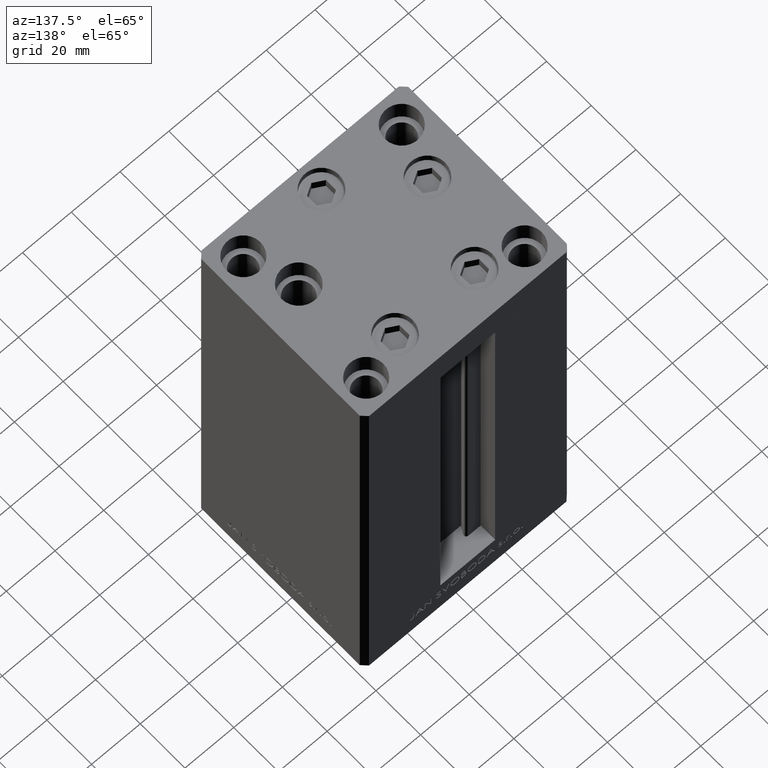
[diagram: clean part render]
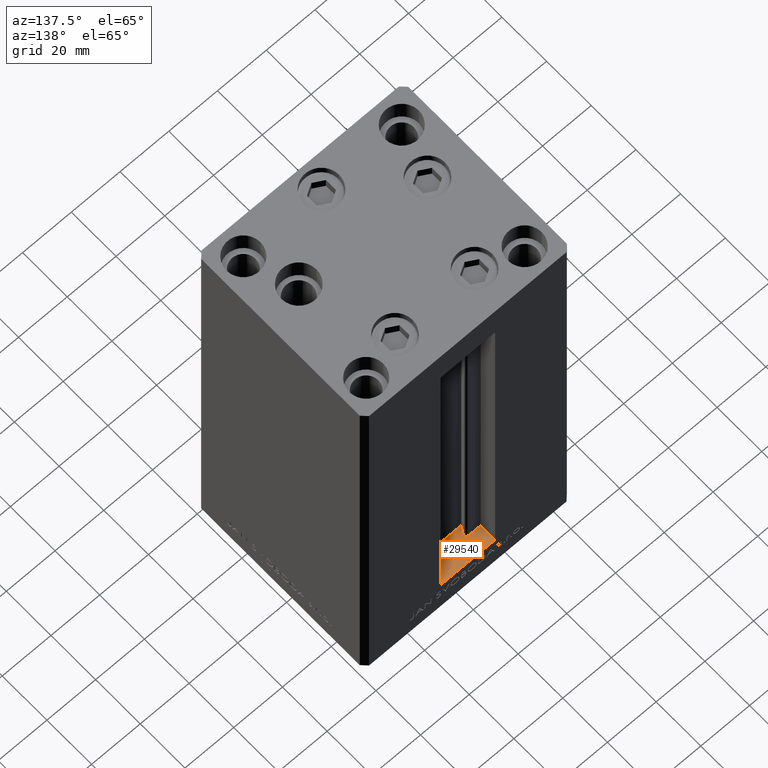
[diagram: same view with one face highlighted and labeled with its STEP entity id]
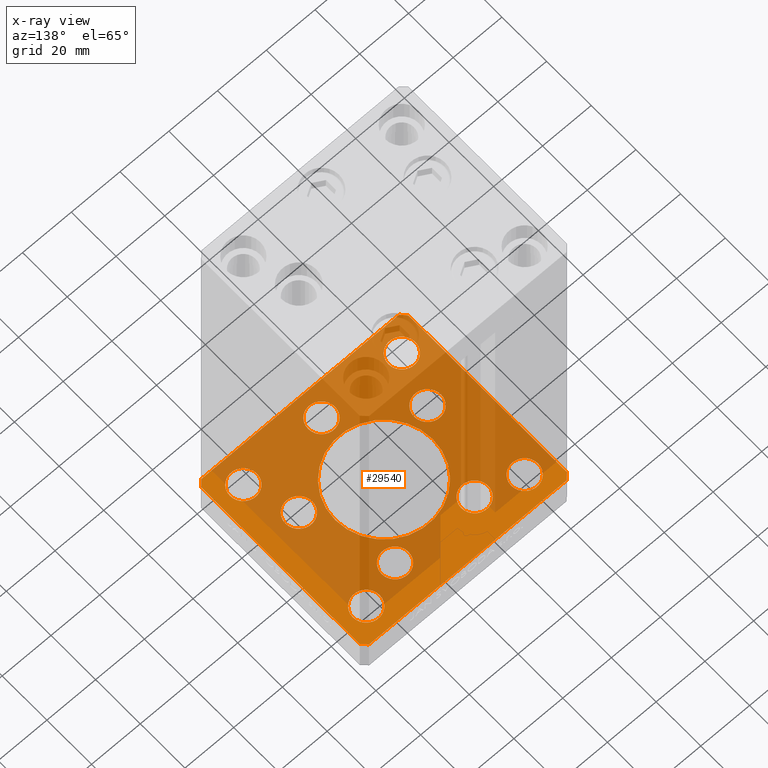
[diagram: x-ray of the same camera — body ghosted, the highlighted face saturated]
A machine part, auxiliary view. The second image highlights one B-rep face of the part: STEP entity #29540.
The next image is the same camera in x-ray: the body ghosted, the highlighted face saturated — about 75% of this face is hidden behind the body in this view.
In plain terms, the highlighted planar face has unit normal (0, 0, -1).
Its self-contained STEP definition (entity closure, byte-faithful):
#97 = EDGE_CURVE ( 'NONE', #33451, #36323, #37943, .T. ) ;
#394 = DIRECTION ( 'NONE',  ( 1.000000000000000000, 0.000000000000000000, 0.000000000000000000 ) ) ;
#706 = CARTESIAN_POINT ( 'NONE',  ( 0.000000000000000000, 0.000000000000000000, -15.00000000000000000 ) ) ;
#1478 = CARTESIAN_POINT ( 'NONE',  ( 5.500000000000000000, -28.00000000000000000, -15.00000000000000000 ) ) ;
#2094 = DIRECTION ( 'NONE',  ( -0.000000000000000000, 0.000000000000000000, 1.000000000000000000 ) ) ;
#2304 = VERTEX_POINT ( 'NONE', #44771 ) ;
#2755 = VECTOR ( 'NONE', #5138, 1000.000000000000000 ) ;
#2820 = AXIS2_PLACEMENT_3D ( 'NONE', #21698, #14400, #17663 ) ;
#3038 = VECTOR ( 'NONE', #42589, 1000.000000000000000 ) ;
#3279 = CARTESIAN_POINT ( 'NONE',  ( 10.82291334290544604, 22.74999999999999289, -15.00000000000000000 ) ) ;
#3298 = ORIENTED_EDGE ( 'NONE', *, *, #8853, .T. ) ;
#3534 = CIRCLE ( 'NONE', #31632, 5.499999999999998224 ) ;
#3771 = EDGE_LOOP ( 'NONE', ( #27660, #39277, #43460, #42204, #13639, #24082, #22173, #16581 ) ) ;
#3836 = EDGE_CURVE ( 'NONE', #13197, #24353, #29240, .T. ) ;
#3910 = ORIENTED_EDGE ( 'NONE', *, *, #20980, .F. ) ;
#4022 = DIRECTION ( 'NONE',  ( -0.7071067811865524577, 0.7071067811865426878, 0.000000000000000000 ) ) ;
#4591 = AXIS2_PLACEMENT_3D ( 'NONE', #706, #18800, #27103 ) ;
#5138 = DIRECTION ( 'NONE',  ( 9.773090005503145261E-17, 1.000000000000000000, 0.000000000000000000 ) ) ;
#5227 = VECTOR ( 'NONE', #9442, 1000.000000000000000 ) ;
#5323 = EDGE_CURVE ( 'NONE', #8970, #33451, #47101, .T. ) ;
#5759 = CARTESIAN_POINT ( 'NONE',  ( 32.50000000000000000, 27.49999999999999645, -15.00000000000000000 ) ) ;
#6634 = VERTEX_POINT ( 'NONE', #28063 ) ;
#6879 = EDGE_CURVE ( 'NONE', #42743, #35894, #30030, .T. ) ;
#6923 = CARTESIAN_POINT ( 'NONE',  ( 16.32291334290544071, 22.74999999999999289, -15.00000000000000000 ) ) ;
#7328 = EDGE_CURVE ( 'NONE', #35066, #7404, #15668, .T. ) ;
#7404 = VERTEX_POINT ( 'NONE', #1478 ) ;
#7599 = CARTESIAN_POINT ( 'NONE',  ( 38.00000000000000000, -27.50000000000000355, -15.00000000000000000 ) ) ;
#7629 = EDGE_LOOP ( 'NONE', ( #45126, #13527 ) ) ;
#7783 = VERTEX_POINT ( 'NONE', #30056 ) ;
#7790 = CIRCLE ( 'NONE', #47912, 5.499999999999998224 ) ;
#8057 = EDGE_LOOP ( 'NONE', ( #46930, #9394 ) ) ;
#8134 = CARTESIAN_POINT ( 'NONE',  ( 42.50000000000000711, -35.49999999999992895, -15.00000000000000000 ) ) ;
#8263 = CARTESIAN_POINT ( 'NONE',  ( -32.50000000000000000, 27.50000000000000711, -15.00000000000000000 ) ) ;
#8265 = ORIENTED_EDGE ( 'NONE', *, *, #38704, .F. ) ;
#8464 = DIRECTION ( 'NONE',  ( 1.000000000000000000, 0.000000000000000000, 0.000000000000000000 ) ) ;
#8599 = VERTEX_POINT ( 'NONE', #23998 ) ;
#8750 = ORIENTED_EDGE ( 'NONE', *, *, #36117, .T. ) ;
#8853 = EDGE_CURVE ( 'NONE', #46281, #48559, #35639, .T. ) ;
#8970 = VERTEX_POINT ( 'NONE', #8134 ) ;
#9276 = CARTESIAN_POINT ( 'NONE',  ( 21.82291334290544071, 22.74999999999999289, -15.00000000000000000 ) ) ;
#9355 = CIRCLE ( 'NONE', #24601, 5.499999999999998224 ) ;
#9394 = ORIENTED_EDGE ( 'NONE', *, *, #6879, .T. ) ;
#9442 = DIRECTION ( 'NONE',  ( -1.000000000000000000, -4.283267841918041508E-16, 0.000000000000000000 ) ) ;
#9562 = EDGE_CURVE ( 'NONE', #2304, #38003, #23664, .T. ) ;
#9834 = EDGE_LOOP ( 'NONE', ( #16561, #12075 ) ) ;
#9967 = AXIS2_PLACEMENT_3D ( 'NONE', #33529, #19180, #45575 ) ;
#10113 = AXIS2_PLACEMENT_3D ( 'NONE', #30721, #14382, #29727 ) ;
#10336 = VERTEX_POINT ( 'NONE', #13379 ) ;
#10509 = FACE_BOUND ( 'NONE', #36011, .T. ) ;
#10657 = DIRECTION ( 'NONE',  ( 0.000000000000000000, -0.000000000000000000, -1.000000000000000000 ) ) ;
#10748 = FACE_BOUND ( 'NONE', #33492, .T. ) ;
#10760 = ORIENTED_EDGE ( 'NONE', *, *, #14897, .F. ) ;
#10789 = AXIS2_PLACEMENT_3D ( 'NONE', #18015, #17018, #36646 ) ;
#10846 = EDGE_CURVE ( 'NONE', #36323, #31033, #16695, .T. ) ;
#11059 = LINE ( 'NONE', #16049, #36247 ) ;
#11292 = EDGE_CURVE ( 'NONE', #8599, #22788, #18090, .T. ) ;
#11373 = CARTESIAN_POINT ( 'NONE',  ( -21.82291334290544071, 22.74999999999999289, -15.00000000000000000 ) ) ;
#11442 = CARTESIAN_POINT ( 'NONE',  ( -27.00000000000000355, 27.50000000000000711, -15.00000000000000000 ) ) ;
#11529 = DIRECTION ( 'NONE',  ( 1.000000000000000000, 0.000000000000000000, 0.000000000000000000 ) ) ;
#11814 = DIRECTION ( 'NONE',  ( -0.000000000000000000, 0.000000000000000000, 1.000000000000000000 ) ) ;
#11925 = LINE ( 'NONE', #27258, #3038 ) ;
#12075 = ORIENTED_EDGE ( 'NONE', *, *, #43352, .F. ) ;
#12256 = CARTESIAN_POINT ( 'NONE',  ( -16.32291334290544071, 22.74999999999999289, -15.00000000000000000 ) ) ;
#12552 = EDGE_CURVE ( 'NONE', #10336, #6634, #26979, .T. ) ;
#12608 = CIRCLE ( 'NONE', #41496, 5.499999999999998224 ) ;
#12710 = CARTESIAN_POINT ( 'NONE',  ( 16.32291334290544071, 22.74999999999999289, -15.00000000000000000 ) ) ;
#12713 = ORIENTED_EDGE ( 'NONE', *, *, #36472, .T. ) ;
#12926 = CARTESIAN_POINT ( 'NONE',  ( 42.50000000000000711, -35.49999999999992895, -15.00000000000000000 ) ) ;
#13150 = AXIS2_PLACEMENT_3D ( 'NONE', #25102, #40415, #44691 ) ;
#13166 = EDGE_CURVE ( 'NONE', #37958, #21289, #9355, .T. ) ;
#13197 = VERTEX_POINT ( 'NONE', #15237 ) ;
#13379 = CARTESIAN_POINT ( 'NONE',  ( -42.50000000000000000, -35.50000000000004263, -15.00000000000000000 ) ) ;
#13446 = DIRECTION ( 'NONE',  ( -0.7071067811865536790, -0.7071067811865414665, 0.000000000000000000 ) ) ;
#13527 = ORIENTED_EDGE ( 'NONE', *, *, #36725, .T. ) ;
#13639 = ORIENTED_EDGE ( 'NONE', *, *, #97, .F. ) ;
#14375 = VECTOR ( 'NONE', #45858, 1000.000000000000114 ) ;
#14382 = DIRECTION ( 'NONE',  ( -0.000000000000000000, 0.000000000000000000, 1.000000000000000000 ) ) ;
#14400 = DIRECTION ( 'NONE',  ( 0.000000000000000000, -0.000000000000000000, -1.000000000000000000 ) ) ;
#14896 = EDGE_CURVE ( 'NONE', #48559, #46281, #7790, .T. ) ;
#14897 = EDGE_CURVE ( 'NONE', #7783, #37366, #26258, .T. ) ;
#15237 = CARTESIAN_POINT ( 'NONE',  ( 27.00000000000000355, 27.49999999999999645, -15.00000000000000000 ) ) ;
#15668 = CIRCLE ( 'NONE', #18060, 5.500000000000000000 ) ;
#16049 = CARTESIAN_POINT ( 'NONE',  ( -40.50000000000000711, -37.50000000000003553, -15.00000000000000000 ) ) ;
#16074 = EDGE_LOOP ( 'NONE', ( #37011, #3298 ) ) ;
#16090 = EDGE_LOOP ( 'NONE', ( #3910, #43768 ) ) ;
#16561 = ORIENTED_EDGE ( 'NONE', *, *, #35865, .F. ) ;
#16581 = ORIENTED_EDGE ( 'NONE', *, *, #29397, .F. ) ;
#16652 = DIRECTION ( 'NONE',  ( -0.000000000000000000, 0.000000000000000000, 1.000000000000000000 ) ) ;
#16687 = DIRECTION ( 'NONE',  ( -0.000000000000000000, 0.000000000000000000, 1.000000000000000000 ) ) ;
#16695 = LINE ( 'NONE', #36573, #5227 ) ;
#17018 = DIRECTION ( 'NONE',  ( -0.000000000000000000, 0.000000000000000000, 1.000000000000000000 ) ) ;
#17186 = EDGE_CURVE ( 'NONE', #18173, #10336, #11925, .T. ) ;
#17402 = DIRECTION ( 'NONE',  ( 1.000000000000000000, 0.000000000000000000, 0.000000000000000000 ) ) ;
#17487 = VERTEX_POINT ( 'NONE', #9276 ) ;
#17663 = DIRECTION ( 'NONE',  ( 1.000000000000000000, 0.000000000000000000, 0.000000000000000000 ) ) ;
#18015 = CARTESIAN_POINT ( 'NONE',  ( 26.39865316429777664, -9.333333333333330373, -15.00000000000000000 ) ) ;
#18060 = AXIS2_PLACEMENT_3D ( 'NONE', #46230, #11814, #28126 ) ;
#18090 = CIRCLE ( 'NONE', #10113, 5.499999999999998224 ) ;
#18098 = EDGE_LOOP ( 'NONE', ( #8265, #10760 ) ) ;
#18173 = VERTEX_POINT ( 'NONE', #41805 ) ;
#18297 = CARTESIAN_POINT ( 'NONE',  ( -27.00000000000000355, -27.50000000000000355, -15.00000000000000000 ) ) ;
#18747 = VERTEX_POINT ( 'NONE', #35065 ) ;
#18800 = DIRECTION ( 'NONE',  ( 0.000000000000000000, -0.000000000000000000, -1.000000000000000000 ) ) ;
#19180 = DIRECTION ( 'NONE',  ( -0.000000000000000000, 0.000000000000000000, 1.000000000000000000 ) ) ;
#19248 = CARTESIAN_POINT ( 'NONE',  ( 42.50000000000001421, 35.50000000000002132, -15.00000000000000000 ) ) ;
#19493 = DIRECTION ( 'NONE',  ( -0.000000000000000000, 0.000000000000000000, 1.000000000000000000 ) ) ;
#19605 = AXIS2_PLACEMENT_3D ( 'NONE', #6923, #41096, #26521 ) ;
#20021 = EDGE_CURVE ( 'NONE', #37079, #8970, #30558, .T. ) ;
#20980 = EDGE_CURVE ( 'NONE', #24353, #13197, #28046, .T. ) ;
#20986 = LINE ( 'NONE', #27782, #43680 ) ;
#21071 = DIRECTION ( 'NONE',  ( 0.000000000000000000, -0.000000000000000000, -1.000000000000000000 ) ) ;
#21289 = VERTEX_POINT ( 'NONE', #24981 ) ;
#21442 = CARTESIAN_POINT ( 'NONE',  ( -16.32291334290544071, 22.74999999999999289, -15.00000000000000000 ) ) ;
#21565 = DIRECTION ( 'NONE',  ( -0.000000000000000000, 0.000000000000000000, 1.000000000000000000 ) ) ;
#21698 = CARTESIAN_POINT ( 'NONE',  ( 0.000000000000000000, 0.000000000000000000, -15.00000000000000000 ) ) ;
#21941 = DIRECTION ( 'NONE',  ( 1.000000000000000000, 0.000000000000000000, 0.000000000000000000 ) ) ;
#22104 = ORIENTED_EDGE ( 'NONE', *, *, #11292, .T. ) ;
#22173 = ORIENTED_EDGE ( 'NONE', *, *, #20021, .F. ) ;
#22364 = VERTEX_POINT ( 'NONE', #18297 ) ;
#22473 = CARTESIAN_POINT ( 'NONE',  ( -32.50000000000000000, -27.50000000000000355, -15.00000000000000000 ) ) ;
#22788 = VERTEX_POINT ( 'NONE', #46950 ) ;
#22845 = AXIS2_PLACEMENT_3D ( 'NONE', #12256, #27583, #42918 ) ;
#23664 = CIRCLE ( 'NONE', #22845, 5.500000000000000000 ) ;
#23774 = DIRECTION ( 'NONE',  ( -0.000000000000000000, 0.000000000000000000, 1.000000000000000000 ) ) ;
#23877 = CIRCLE ( 'NONE', #34326, 5.499999999999998224 ) ;
#23998 = CARTESIAN_POINT ( 'NONE',  ( -31.89865316429777664, -9.333333333333330373, -15.00000000000000000 ) ) ;
#24082 = ORIENTED_EDGE ( 'NONE', *, *, #5323, .F. ) ;
#24353 = VERTEX_POINT ( 'NONE', #48033 ) ;
#24471 = DIRECTION ( 'NONE',  ( 1.000000000000000000, 0.000000000000000000, 0.000000000000000000 ) ) ;
#24587 = CARTESIAN_POINT ( 'NONE',  ( 31.89865316429777664, -9.333333333333330373, -15.00000000000000000 ) ) ;
#24601 = AXIS2_PLACEMENT_3D ( 'NONE', #46630, #19493, #394 ) ;
#24981 = CARTESIAN_POINT ( 'NONE',  ( 27.00000000000000355, -27.50000000000000355, -15.00000000000000000 ) ) ;
#25093 = FACE_BOUND ( 'NONE', #34535, .T. ) ;
#25102 = CARTESIAN_POINT ( 'NONE',  ( 32.50000000000000000, 27.49999999999999645, -15.00000000000000000 ) ) ;
#25455 = ORIENTED_EDGE ( 'NONE', *, *, #43934, .T. ) ;
#25589 = FACE_BOUND ( 'NONE', #33243, .T. ) ;
#26034 = AXIS2_PLACEMENT_3D ( 'NONE', #21442, #2094, #17402 ) ;
#26078 = CARTESIAN_POINT ( 'NONE',  ( 0.000000000000000000, 0.000000000000000000, -15.00000000000000000 ) ) ;
#26258 = CIRCLE ( 'NONE', #4591, 20.00000000000000000 ) ;
#26450 = CARTESIAN_POINT ( 'NONE',  ( -32.50000000000000000, -27.50000000000000355, -15.00000000000000000 ) ) ;
#26488 = CARTESIAN_POINT ( 'NONE',  ( -42.50000000000000000, -35.50000000000004263, -15.00000000000000000 ) ) ;
#26521 = DIRECTION ( 'NONE',  ( 1.000000000000000000, 0.000000000000000000, 0.000000000000000000 ) ) ;
#26979 = LINE ( 'NONE', #26488, #31006 ) ;
#27103 = DIRECTION ( 'NONE',  ( 1.000000000000000000, 0.000000000000000000, 0.000000000000000000 ) ) ;
#27228 = DIRECTION ( 'NONE',  ( 0.7071067811865487940, -0.7071067811865463515, 0.000000000000000000 ) ) ;
#27258 = CARTESIAN_POINT ( 'NONE',  ( -42.50000000000000711, 35.50000000000000000, -15.00000000000000000 ) ) ;
#27583 = DIRECTION ( 'NONE',  ( -0.000000000000000000, 0.000000000000000000, 1.000000000000000000 ) ) ;
#27639 = AXIS2_PLACEMENT_3D ( 'NONE', #33380, #32889, #48202 ) ;
#27660 = ORIENTED_EDGE ( 'NONE', *, *, #12552, .F. ) ;
#27782 = CARTESIAN_POINT ( 'NONE',  ( -40.50000000000000000, 37.49999999999997158, -15.00000000000000000 ) ) ;
#28046 = CIRCLE ( 'NONE', #39256, 5.499999999999998224 ) ;
#28063 = CARTESIAN_POINT ( 'NONE',  ( -40.50000000000000711, -37.50000000000003553, -15.00000000000000000 ) ) ;
#28126 = DIRECTION ( 'NONE',  ( 1.000000000000000000, 0.000000000000000000, 0.000000000000000000 ) ) ;
#28366 = ORIENTED_EDGE ( 'NONE', *, *, #38647, .T. ) ;
#29112 = FACE_BOUND ( 'NONE', #16090, .T. ) ;
#29240 = CIRCLE ( 'NONE', #13150, 5.499999999999998224 ) ;
#29364 = FACE_BOUND ( 'NONE', #18098, .T. ) ;
#29397 = EDGE_CURVE ( 'NONE', #6634, #37079, #11059, .T. ) ;
#29540 = ADVANCED_FACE ( 'NONE', ( #29364, #10748, #25093, #33131, #25589, #37135, #29112, #37633, #44930, #48204, #10509 ), #40407, .F. ) ;
#29727 = DIRECTION ( 'NONE',  ( 1.000000000000000000, 0.000000000000000000, 0.000000000000000000 ) ) ;
#30030 = CIRCLE ( 'NONE', #34149, 5.499999999999998224 ) ;
#30056 = CARTESIAN_POINT ( 'NONE',  ( -20.00000000000000000, 2.449293598294706513E-15, -15.00000000000000000 ) ) ;
#30405 = DIRECTION ( 'NONE',  ( -0.000000000000000000, 0.000000000000000000, 1.000000000000000000 ) ) ;
#30558 = LINE ( 'NONE', #33809, #14375 ) ;
#30664 = CARTESIAN_POINT ( 'NONE',  ( 20.89865316429778019, -9.333333333333330373, -15.00000000000000000 ) ) ;
#30721 = CARTESIAN_POINT ( 'NONE',  ( -26.39865316429777664, -9.333333333333330373, -15.00000000000000000 ) ) ;
#30860 = CIRCLE ( 'NONE', #27639, 5.500000000000000000 ) ;
#31006 = VECTOR ( 'NONE', #27228, 1000.000000000000000 ) ;
#31033 = VERTEX_POINT ( 'NONE', #34505 ) ;
#31091 = CARTESIAN_POINT ( 'NONE',  ( 20.00000000000000000, 0.000000000000000000, -15.00000000000000000 ) ) ;
#31632 = AXIS2_PLACEMENT_3D ( 'NONE', #26450, #48315, #44546 ) ;
#32517 = VECTOR ( 'NONE', #4022, 1000.000000000000000 ) ;
#32889 = DIRECTION ( 'NONE',  ( -0.000000000000000000, 0.000000000000000000, 1.000000000000000000 ) ) ;
#33131 = FACE_BOUND ( 'NONE', #8057, .T. ) ;
#33243 = EDGE_LOOP ( 'NONE', ( #38030, #12713 ) ) ;
#33361 = EDGE_CURVE ( 'NONE', #31033, #18173, #20986, .T. ) ;
#33380 = CARTESIAN_POINT ( 'NONE',  ( 0.000000000000000000, -28.00000000000000000, -15.00000000000000000 ) ) ;
#33451 = VERTEX_POINT ( 'NONE', #40579 ) ;
#33492 = EDGE_LOOP ( 'NONE', ( #28366, #22104 ) ) ;
#33529 = CARTESIAN_POINT ( 'NONE',  ( -32.50000000000000000, 27.50000000000000711, -15.00000000000000000 ) ) ;
#33611 = AXIS2_PLACEMENT_3D ( 'NONE', #12710, #23774, #8464 ) ;
#33809 = CARTESIAN_POINT ( 'NONE',  ( 40.50000000000001421, -37.49999999999992184, -15.00000000000000000 ) ) ;
#34149 = AXIS2_PLACEMENT_3D ( 'NONE', #49085, #37268, #21941 ) ;
#34326 = AXIS2_PLACEMENT_3D ( 'NONE', #35078, #16687, #38835 ) ;
#34505 = CARTESIAN_POINT ( 'NONE',  ( -40.50000000000000000, 37.49999999999997158, -15.00000000000000000 ) ) ;
#34535 = EDGE_LOOP ( 'NONE', ( #8750, #37131 ) ) ;
#35065 = CARTESIAN_POINT ( 'NONE',  ( -38.00000000000000000, -27.50000000000000355, -15.00000000000000000 ) ) ;
#35066 = VERTEX_POINT ( 'NONE', #44669 ) ;
#35078 = CARTESIAN_POINT ( 'NONE',  ( 32.50000000000000000, -27.50000000000000355, -15.00000000000000000 ) ) ;
#35639 = CIRCLE ( 'NONE', #9967, 5.499999999999998224 ) ;
#35865 = EDGE_CURVE ( 'NONE', #22364, #18747, #3534, .T. ) ;
#35894 = VERTEX_POINT ( 'NONE', #24587 ) ;
#35902 = DIRECTION ( 'NONE',  ( 1.000000000000000000, 0.000000000000000000, 0.000000000000000000 ) ) ;
#35994 = CIRCLE ( 'NONE', #33611, 5.499999999999998224 ) ;
#36011 = EDGE_LOOP ( 'NONE', ( #38466, #25455 ) ) ;
#36113 = EDGE_CURVE ( 'NONE', #35894, #42743, #39653, .T. ) ;
#36117 = EDGE_CURVE ( 'NONE', #7404, #35066, #30860, .T. ) ;
#36247 = VECTOR ( 'NONE', #37938, 1000.000000000000000 ) ;
#36262 = CARTESIAN_POINT ( 'NONE',  ( -38.00000000000000000, 27.50000000000000711, -15.00000000000000000 ) ) ;
#36323 = VERTEX_POINT ( 'NONE', #44614 ) ;
#36472 = EDGE_CURVE ( 'NONE', #38978, #17487, #48484, .T. ) ;
#36546 = CIRCLE ( 'NONE', #45367, 5.499999999999998224 ) ;
#36573 = CARTESIAN_POINT ( 'NONE',  ( 40.50000000000000711, 37.50000000000000711, -15.00000000000000000 ) ) ;
#36646 = DIRECTION ( 'NONE',  ( 1.000000000000000000, 0.000000000000000000, 0.000000000000000000 ) ) ;
#36725 = EDGE_CURVE ( 'NONE', #38003, #2304, #41280, .T. ) ;
#37011 = ORIENTED_EDGE ( 'NONE', *, *, #14896, .T. ) ;
#37079 = VERTEX_POINT ( 'NONE', #44491 ) ;
#37131 = ORIENTED_EDGE ( 'NONE', *, *, #7328, .T. ) ;
#37135 = FACE_BOUND ( 'NONE', #7629, .T. ) ;
#37268 = DIRECTION ( 'NONE',  ( -0.000000000000000000, 0.000000000000000000, 1.000000000000000000 ) ) ;
#37366 = VERTEX_POINT ( 'NONE', #31091 ) ;
#37633 = FACE_BOUND ( 'NONE', #9834, .T. ) ;
#37938 = DIRECTION ( 'NONE',  ( 1.000000000000000000, 1.370645709413773283E-15, 0.000000000000000000 ) ) ;
#37943 = LINE ( 'NONE', #19248, #32517 ) ;
#37958 = VERTEX_POINT ( 'NONE', #7599 ) ;
#38003 = VERTEX_POINT ( 'NONE', #11373 ) ;
#38030 = ORIENTED_EDGE ( 'NONE', *, *, #45869, .T. ) ;
#38466 = ORIENTED_EDGE ( 'NONE', *, *, #13166, .T. ) ;
#38647 = EDGE_CURVE ( 'NONE', #22788, #8599, #36546, .T. ) ;
#38704 = EDGE_CURVE ( 'NONE', #37366, #7783, #42183, .T. ) ;
#38835 = DIRECTION ( 'NONE',  ( 1.000000000000000000, 0.000000000000000000, 0.000000000000000000 ) ) ;
#38978 = VERTEX_POINT ( 'NONE', #3279 ) ;
#39256 = AXIS2_PLACEMENT_3D ( 'NONE', #5759, #21071, #35902 ) ;
#39277 = ORIENTED_EDGE ( 'NONE', *, *, #17186, .F. ) ;
#39653 = CIRCLE ( 'NONE', #10789, 5.499999999999998224 ) ;
#40043 = CARTESIAN_POINT ( 'NONE',  ( -26.39865316429777664, -9.333333333333330373, -15.00000000000000000 ) ) ;
#40407 = PLANE ( 'NONE',  #41056 ) ;
#40415 = DIRECTION ( 'NONE',  ( 0.000000000000000000, -0.000000000000000000, -1.000000000000000000 ) ) ;
#40579 = CARTESIAN_POINT ( 'NONE',  ( 42.50000000000001421, 35.50000000000002132, -15.00000000000000000 ) ) ;
#41056 = AXIS2_PLACEMENT_3D ( 'NONE', #26078, #21565, #48951 ) ;
#41096 = DIRECTION ( 'NONE',  ( -0.000000000000000000, 0.000000000000000000, 1.000000000000000000 ) ) ;
#41280 = CIRCLE ( 'NONE', #26034, 5.500000000000000000 ) ;
#41496 = AXIS2_PLACEMENT_3D ( 'NONE', #22473, #10657, #49590 ) ;
#41805 = CARTESIAN_POINT ( 'NONE',  ( -42.50000000000000711, 35.50000000000000000, -15.00000000000000000 ) ) ;
#42183 = CIRCLE ( 'NONE', #2820, 20.00000000000000000 ) ;
#42204 = ORIENTED_EDGE ( 'NONE', *, *, #10846, .F. ) ;
#42589 = DIRECTION ( 'NONE',  ( 9.773090005503134168E-17, -1.000000000000000000, 0.000000000000000000 ) ) ;
#42743 = VERTEX_POINT ( 'NONE', #30664 ) ;
#42918 = DIRECTION ( 'NONE',  ( 1.000000000000000000, 0.000000000000000000, 0.000000000000000000 ) ) ;
#43352 = EDGE_CURVE ( 'NONE', #18747, #22364, #12608, .T. ) ;
#43460 = ORIENTED_EDGE ( 'NONE', *, *, #33361, .F. ) ;
#43680 = VECTOR ( 'NONE', #13446, 1000.000000000000000 ) ;
#43768 = ORIENTED_EDGE ( 'NONE', *, *, #3836, .F. ) ;
#43934 = EDGE_CURVE ( 'NONE', #21289, #37958, #23877, .T. ) ;
#44491 = CARTESIAN_POINT ( 'NONE',  ( 40.50000000000001421, -37.49999999999992184, -15.00000000000000000 ) ) ;
#44546 = DIRECTION ( 'NONE',  ( 1.000000000000000000, 0.000000000000000000, 0.000000000000000000 ) ) ;
#44614 = CARTESIAN_POINT ( 'NONE',  ( 40.50000000000000711, 37.50000000000000711, -15.00000000000000000 ) ) ;
#44669 = CARTESIAN_POINT ( 'NONE',  ( -5.500000000000000000, -28.00000000000000000, -15.00000000000000000 ) ) ;
#44691 = DIRECTION ( 'NONE',  ( 1.000000000000000000, 0.000000000000000000, 0.000000000000000000 ) ) ;
#44771 = CARTESIAN_POINT ( 'NONE',  ( -10.82291334290544249, 22.74999999999999289, -15.00000000000000000 ) ) ;
#44930 = FACE_OUTER_BOUND ( 'NONE', #3771, .T. ) ;
#45126 = ORIENTED_EDGE ( 'NONE', *, *, #9562, .T. ) ;
#45367 = AXIS2_PLACEMENT_3D ( 'NONE', #40043, #16652, #24471 ) ;
#45575 = DIRECTION ( 'NONE',  ( 1.000000000000000000, 0.000000000000000000, 0.000000000000000000 ) ) ;
#45858 = DIRECTION ( 'NONE',  ( 0.7071067811865474617, 0.7071067811865474617, 0.000000000000000000 ) ) ;
#45869 = EDGE_CURVE ( 'NONE', #17487, #38978, #35994, .T. ) ;
#46230 = CARTESIAN_POINT ( 'NONE',  ( 0.000000000000000000, -28.00000000000000000, -15.00000000000000000 ) ) ;
#46281 = VERTEX_POINT ( 'NONE', #36262 ) ;
#46630 = CARTESIAN_POINT ( 'NONE',  ( 32.50000000000000000, -27.50000000000000355, -15.00000000000000000 ) ) ;
#46930 = ORIENTED_EDGE ( 'NONE', *, *, #36113, .T. ) ;
#46950 = CARTESIAN_POINT ( 'NONE',  ( -20.89865316429778019, -9.333333333333330373, -15.00000000000000000 ) ) ;
#47101 = LINE ( 'NONE', #12926, #2755 ) ;
#47912 = AXIS2_PLACEMENT_3D ( 'NONE', #8263, #30405, #11529 ) ;
#48033 = CARTESIAN_POINT ( 'NONE',  ( 38.00000000000000000, 27.49999999999999645, -15.00000000000000000 ) ) ;
#48202 = DIRECTION ( 'NONE',  ( 1.000000000000000000, 0.000000000000000000, 0.000000000000000000 ) ) ;
#48204 = FACE_BOUND ( 'NONE', #16074, .T. ) ;
#48315 = DIRECTION ( 'NONE',  ( 0.000000000000000000, -0.000000000000000000, -1.000000000000000000 ) ) ;
#48484 = CIRCLE ( 'NONE', #19605, 5.499999999999998224 ) ;
#48559 = VERTEX_POINT ( 'NONE', #11442 ) ;
#48951 = DIRECTION ( 'NONE',  ( 1.000000000000000000, 0.000000000000000000, 0.000000000000000000 ) ) ;
#49085 = CARTESIAN_POINT ( 'NONE',  ( 26.39865316429777664, -9.333333333333330373, -15.00000000000000000 ) ) ;
#49590 = DIRECTION ( 'NONE',  ( 1.000000000000000000, 0.000000000000000000, 0.000000000000000000 ) ) ;